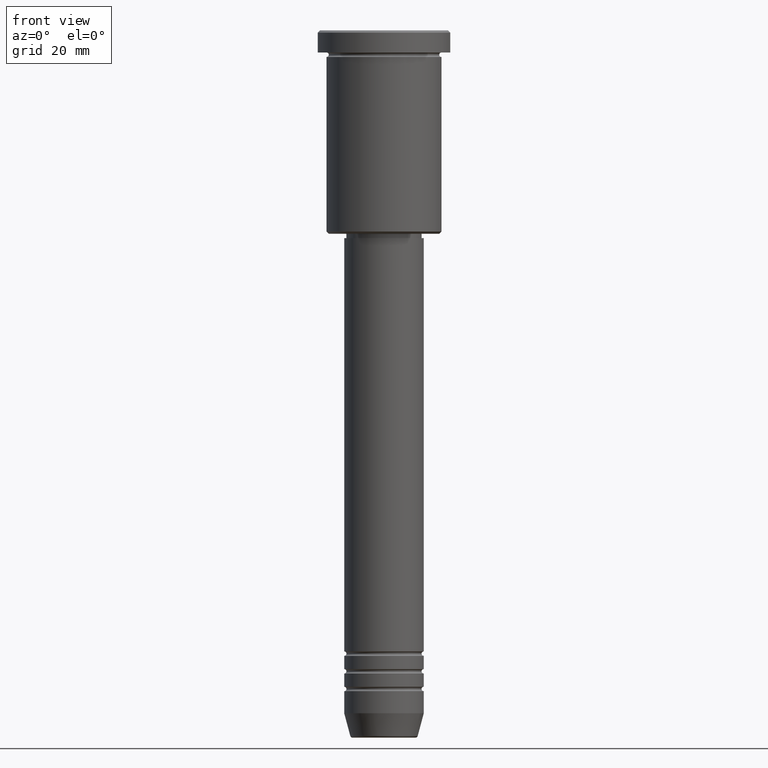
[diagram: clean part render]
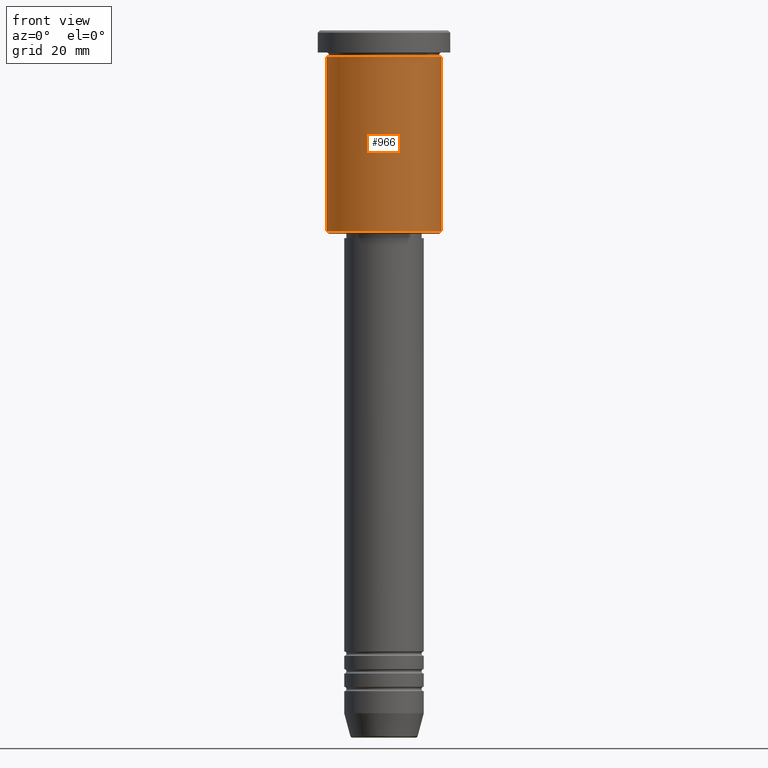
[diagram: same view with one face highlighted and labeled with its STEP entity id]
A machine part, front view. The second image highlights one B-rep face of the part: STEP entity #966.
In plain terms, the highlighted cylindrical surface (partial cylindrical patch) has radius 13 mm, axis along (-0, -0, 1).
Its self-contained STEP definition (entity closure, byte-faithful):
#11 = VERTEX_POINT ( 'NONE', #544 ) ;
#20 = ORIENTED_EDGE ( 'NONE', *, *, #487, .T. ) ;
#35 = AXIS2_PLACEMENT_3D ( 'NONE', #909, #90, #1171 ) ;
#82 = AXIS2_PLACEMENT_3D ( 'NONE', #951, #214, #222 ) ;
#83 = LINE ( 'NONE', #807, #364 ) ;
#90 = DIRECTION ( 'NONE',  ( -0.000000000000000000, -0.000000000000000000, 1.000000000000000000 ) ) ;
#100 = CIRCLE ( 'NONE', #82, 13.00000000000000178 ) ;
#214 = DIRECTION ( 'NONE',  ( -0.000000000000000000, -0.000000000000000000, 1.000000000000000000 ) ) ;
#222 = DIRECTION ( 'NONE',  ( 1.000000000000000000, 0.000000000000000000, 0.000000000000000000 ) ) ;
#297 = CARTESIAN_POINT ( 'NONE',  ( -13.00000000000000178, 1.592040838891559293E-15, -45.49999999999996447 ) ) ;
#364 = VECTOR ( 'NONE', #892, 1000.000000000000000 ) ;
#376 = DIRECTION ( 'NONE',  ( -0.000000000000000000, -0.000000000000000000, 1.000000000000000000 ) ) ;
#381 = FACE_OUTER_BOUND ( 'NONE', #642, .T. ) ;
#404 = EDGE_CURVE ( 'NONE', #993, #1070, #83, .T. ) ;
#438 = EDGE_CURVE ( 'NONE', #11, #876, #526, .T. ) ;
#487 = EDGE_CURVE ( 'NONE', #993, #11, #737, .T. ) ;
#526 = LINE ( 'NONE', #730, #812 ) ;
#544 = CARTESIAN_POINT ( 'NONE',  ( 13.00000000000000178, 0.000000000000000000, -45.49999999999996447 ) ) ;
#556 = ORIENTED_EDGE ( 'NONE', *, *, #404, .F. ) ;
#572 = DIRECTION ( 'NONE',  ( 1.000000000000000000, 0.000000000000000000, 0.000000000000000000 ) ) ;
#630 = ORIENTED_EDGE ( 'NONE', *, *, #699, .F. ) ;
#640 = AXIS2_PLACEMENT_3D ( 'NONE', #1090, #376, #572 ) ;
#642 = EDGE_LOOP ( 'NONE', ( #556, #20, #1144, #630 ) ) ;
#699 = EDGE_CURVE ( 'NONE', #1070, #876, #100, .T. ) ;
#730 = CARTESIAN_POINT ( 'NONE',  ( 13.00000000000000178, 0.000000000000000000, 0.000000000000000000 ) ) ;
#737 = CIRCLE ( 'NONE', #35, 13.00000000000000178 ) ;
#759 = CYLINDRICAL_SURFACE ( 'NONE', #640, 13.00000000000000178 ) ;
#807 = CARTESIAN_POINT ( 'NONE',  ( -13.00000000000000178, 1.592040838891559293E-15, 0.000000000000000000 ) ) ;
#812 = VECTOR ( 'NONE', #994, 1000.000000000000000 ) ;
#876 = VERTEX_POINT ( 'NONE', #896 ) ;
#892 = DIRECTION ( 'NONE',  ( -0.000000000000000000, -0.000000000000000000, 1.000000000000000000 ) ) ;
#896 = CARTESIAN_POINT ( 'NONE',  ( 13.00000000000000178, 0.000000000000000000, -5.999999999999999112 ) ) ;
#909 = CARTESIAN_POINT ( 'NONE',  ( 0.000000000000000000, 0.000000000000000000, -45.49999999999996447 ) ) ;
#951 = CARTESIAN_POINT ( 'NONE',  ( 0.000000000000000000, 0.000000000000000000, -5.999999999999999112 ) ) ;
#966 = ADVANCED_FACE ( 'NONE', ( #381 ), #759, .T. ) ;
#991 = CARTESIAN_POINT ( 'NONE',  ( -13.00000000000000178, 1.592040838891559293E-15, -5.999999999999999112 ) ) ;
#993 = VERTEX_POINT ( 'NONE', #297 ) ;
#994 = DIRECTION ( 'NONE',  ( -0.000000000000000000, -0.000000000000000000, 1.000000000000000000 ) ) ;
#1070 = VERTEX_POINT ( 'NONE', #991 ) ;
#1090 = CARTESIAN_POINT ( 'NONE',  ( 0.000000000000000000, 0.000000000000000000, 0.000000000000000000 ) ) ;
#1144 = ORIENTED_EDGE ( 'NONE', *, *, #438, .T. ) ;
#1171 = DIRECTION ( 'NONE',  ( -1.000000000000000000, 0.000000000000000000, 0.000000000000000000 ) ) ;